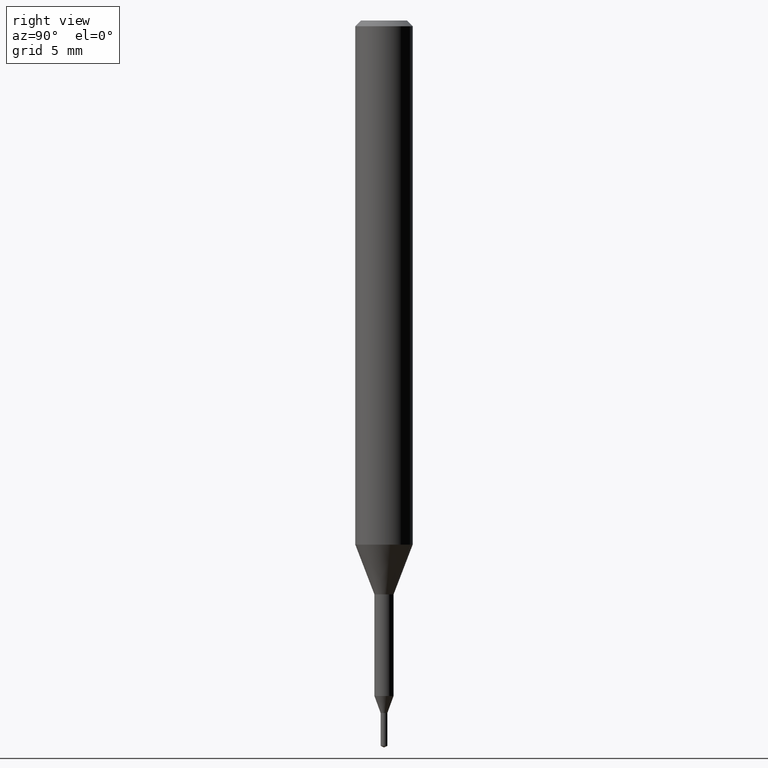
[diagram: clean part render]
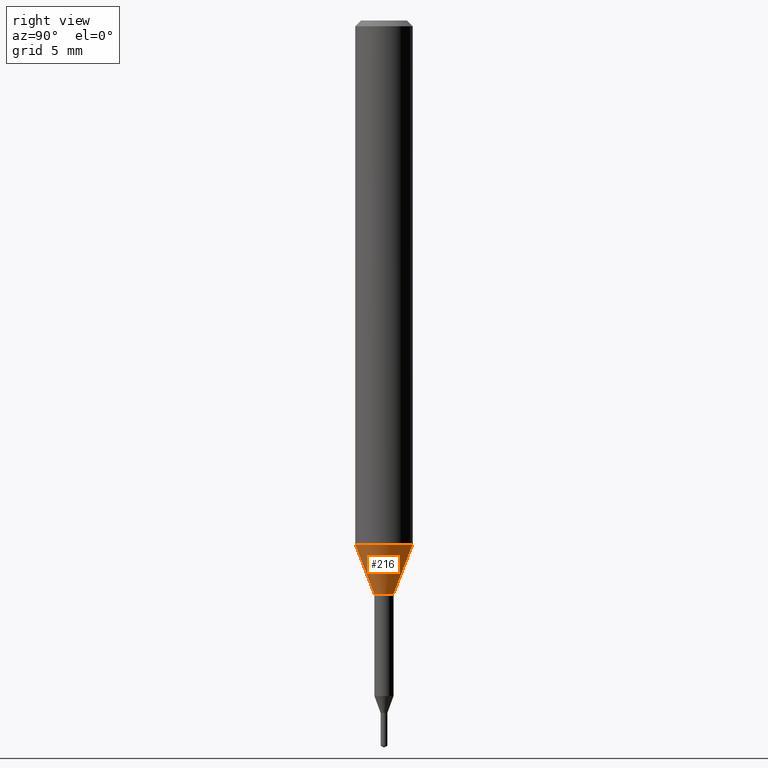
[diagram: same view with one face highlighted and labeled with its STEP entity id]
A machine part, right view. The second image highlights one B-rep face of the part: STEP entity #216.
In plain terms, the highlighted conical surface has half-angle 21.001 deg.
Its self-contained STEP definition (entity closure, byte-faithful):
#122=VERTEX_POINT('',#302);
#164=EDGE_CURVE('',#180,#202,#350,.T.);
#180=VERTEX_POINT('',#367);
#188=VERTEX_POINT('',#378);
#190=EDGE_CURVE('',#188,#122,#380,.T.);
#192=EDGE_CURVE('',#180,#188,#382,.T.);
#202=VERTEX_POINT('',#393);
#216=ADVANCED_FACE('',(#408),#409,.T.);
#242=EDGE_CURVE('',#122,#202,#438,.T.);
#302=CARTESIAN_POINT('',(6.12303176911189E-017,-0.5,-30.0));
#350=CIRCLE('',#555,1.5);
#367=CARTESIAN_POINT('',(0.0,1.5,-27.395));
#378=CARTESIAN_POINT('',(0.0,0.5,-30.0));
#380=CIRCLE('',#589,0.5);
#382=LINE('',#592,#593);
#393=CARTESIAN_POINT('',(1.83690953073357E-016,-1.5,-27.395));
#408=FACE_OUTER_BOUND('',#625,.T.);
#409=CONICAL_SURFACE('',#626,1.0,0.366530581623394);
#438=LINE('',#667,#668);
#555=AXIS2_PLACEMENT_3D('',#795,#796,#797);
#589=AXIS2_PLACEMENT_3D('',#832,#833,#834);
#592=CARTESIAN_POINT('',(-1.22460635382238E-016,1.0,-28.6975));
#593=VECTOR('',#835,1.0);
#625=EDGE_LOOP('',(#861,#862,#863,#864));
#626=AXIS2_PLACEMENT_3D('',#865,#866,#867);
#667=CARTESIAN_POINT('',(1.22460635382238E-016,-1.0,-28.6975));
#668=VECTOR('',#909,1.0);
#795=CARTESIAN_POINT('',(0.0,0.0,-27.395));
#796=DIRECTION('',(0.0,0.0,-1.0));
#797=DIRECTION('',(0.0,1.0,0.0));
#832=CARTESIAN_POINT('',(0.0,0.0,-30.0));
#833=DIRECTION('',(0.0,0.0,-1.0));
#834=DIRECTION('',(0.0,1.0,0.0));
#835=DIRECTION('',(4.38872745501645E-017,-0.35837862847256,-0.933576327171018));
#861=ORIENTED_EDGE('',*,*,#192,.F.);
#862=ORIENTED_EDGE('',*,*,#164,.T.);
#863=ORIENTED_EDGE('',*,*,#242,.F.);
#864=ORIENTED_EDGE('',*,*,#190,.F.);
#865=CARTESIAN_POINT('',(0.0,0.0,-28.6975));
#866=DIRECTION('',(-0.0,-0.0,1.0));
#867=DIRECTION('',(0.0,1.0,0.0));
#909=DIRECTION('',(4.38872745501645E-017,-0.35837862847256,0.933576327171018));